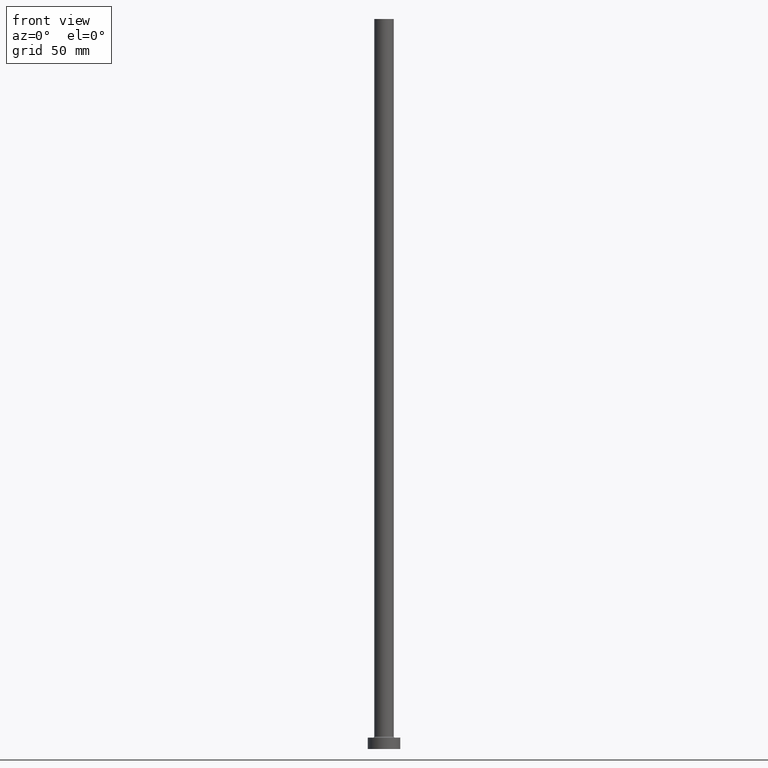
[diagram: clean part render]
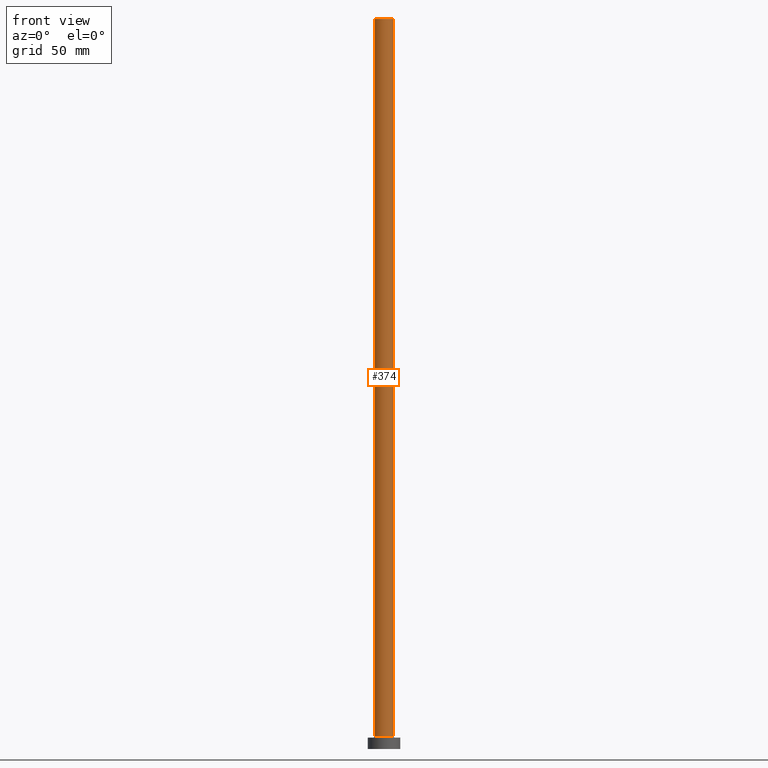
[diagram: same view with one face highlighted and labeled with its STEP entity id]
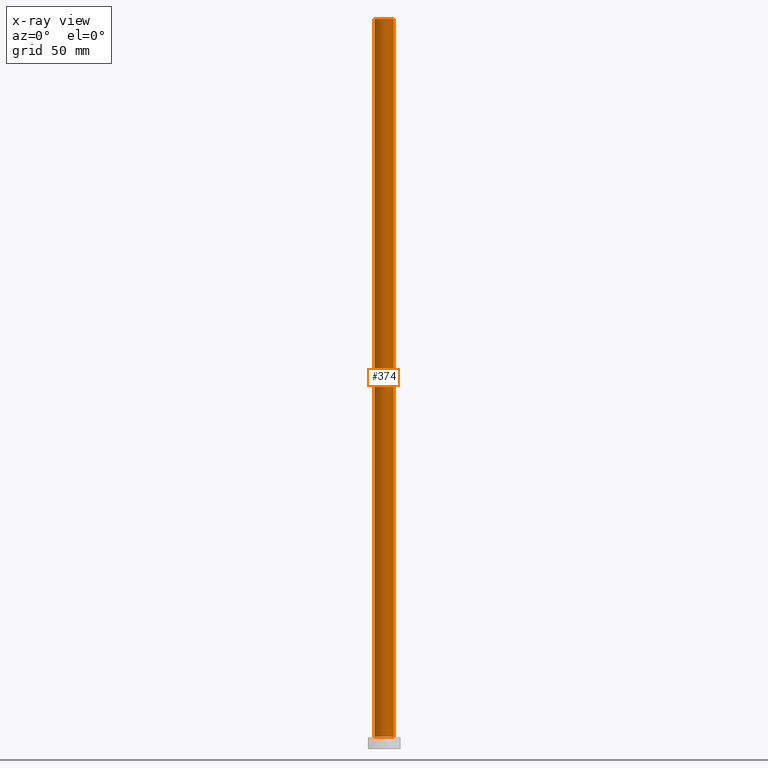
[diagram: x-ray of the same camera — body ghosted, the highlighted face saturated]
A machine part, front view. The second image highlights one B-rep face of the part: STEP entity #374.
The next image is the same camera in x-ray: the body ghosted, the highlighted face saturated — about 0% of this face is hidden behind the body in this view.
In plain terms, the highlighted cylindrical surface (edge-blend (fillet) strip) has radius 6 mm, axis along (-0, -0, -1).
Its self-contained STEP definition (entity closure, byte-faithful):
#2 = EDGE_LOOP ( 'NONE', ( #355, #202, #455, #453 ) ) ;
#45 = DIRECTION ( 'NONE',  ( -1.000000000000000000, 0.000000000000000000, 0.000000000000000000 ) ) ;
#53 = VERTEX_POINT ( 'NONE', #308 ) ;
#62 = LINE ( 'NONE', #140, #439 ) ;
#64 = DIRECTION ( 'NONE',  ( 0.000000000000000000, 0.000000000000000000, 1.000000000000000000 ) ) ;
#89 = DIRECTION ( 'NONE',  ( -0.000000000000000000, -0.000000000000000000, -1.000000000000000000 ) ) ;
#93 = AXIS2_PLACEMENT_3D ( 'NONE', #269, #332, #45 ) ;
#105 = CARTESIAN_POINT ( 'NONE',  ( 0.000000000000000000, 0.000000000000000000, 450.0000000000000000 ) ) ;
#119 = CARTESIAN_POINT ( 'NONE',  ( -6.000000000000000888, 0.000000000000000000, 7.699999999999985079 ) ) ;
#133 = CARTESIAN_POINT ( 'NONE',  ( 6.000000000000000888, 7.347880794884120722E-16, 450.0000000000000000 ) ) ;
#140 = CARTESIAN_POINT ( 'NONE',  ( -6.000000000000000888, 0.000000000000000000, 450.0000000000000000 ) ) ;
#157 = AXIS2_PLACEMENT_3D ( 'NONE', #105, #207, #445 ) ;
#169 = EDGE_CURVE ( 'NONE', #309, #221, #339, .T. ) ;
#171 = DIRECTION ( 'NONE',  ( 1.000000000000000000, 0.000000000000000000, 0.000000000000000000 ) ) ;
#176 = EDGE_CURVE ( 'NONE', #309, #427, #62, .T. ) ;
#181 = CARTESIAN_POINT ( 'NONE',  ( -6.000000000000000888, 0.000000000000000000, 450.0000000000000000 ) ) ;
#195 = LINE ( 'NONE', #225, #457 ) ;
#202 = ORIENTED_EDGE ( 'NONE', *, *, #169, .F. ) ;
#207 = DIRECTION ( 'NONE',  ( 0.000000000000000000, 0.000000000000000000, 1.000000000000000000 ) ) ;
#216 = EDGE_CURVE ( 'NONE', #427, #53, #393, .T. ) ;
#221 = VERTEX_POINT ( 'NONE', #133 ) ;
#225 = CARTESIAN_POINT ( 'NONE',  ( 6.000000000000000888, 7.347880794884120722E-16, 450.0000000000000000 ) ) ;
#248 = CARTESIAN_POINT ( 'NONE',  ( 0.000000000000000000, 0.000000000000000000, 7.699999999999985079 ) ) ;
#269 = CARTESIAN_POINT ( 'NONE',  ( 0.000000000000000000, 0.000000000000000000, 450.0000000000000000 ) ) ;
#288 = AXIS2_PLACEMENT_3D ( 'NONE', #248, #64, #171 ) ;
#308 = CARTESIAN_POINT ( 'NONE',  ( 6.000000000000000888, 7.347880794884120722E-16, 7.699999999999985079 ) ) ;
#309 = VERTEX_POINT ( 'NONE', #181 ) ;
#311 = DIRECTION ( 'NONE',  ( -0.000000000000000000, -0.000000000000000000, -1.000000000000000000 ) ) ;
#332 = DIRECTION ( 'NONE',  ( -0.000000000000000000, -0.000000000000000000, -1.000000000000000000 ) ) ;
#339 = CIRCLE ( 'NONE', #157, 6.000000000000000888 ) ;
#355 = ORIENTED_EDGE ( 'NONE', *, *, #384, .F. ) ;
#364 = FACE_OUTER_BOUND ( 'NONE', #2, .T. ) ;
#374 = ADVANCED_FACE ( 'NONE', ( #364 ), #402, .T. ) ;
#384 = EDGE_CURVE ( 'NONE', #221, #53, #195, .T. ) ;
#393 = CIRCLE ( 'NONE', #288, 6.000000000000000888 ) ;
#402 = CYLINDRICAL_SURFACE ( 'NONE', #93, 6.000000000000000888 ) ;
#427 = VERTEX_POINT ( 'NONE', #119 ) ;
#439 = VECTOR ( 'NONE', #311, 1000.000000000000000 ) ;
#445 = DIRECTION ( 'NONE',  ( 1.000000000000000000, 0.000000000000000000, 0.000000000000000000 ) ) ;
#453 = ORIENTED_EDGE ( 'NONE', *, *, #216, .T. ) ;
#455 = ORIENTED_EDGE ( 'NONE', *, *, #176, .T. ) ;
#457 = VECTOR ( 'NONE', #89, 1000.000000000000000 ) ;